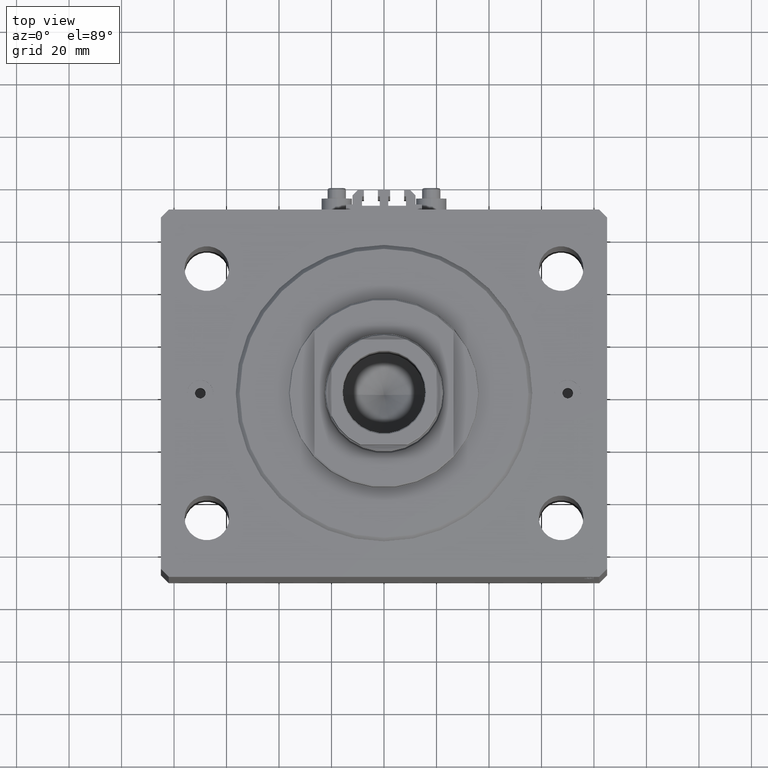
[diagram: clean part render]
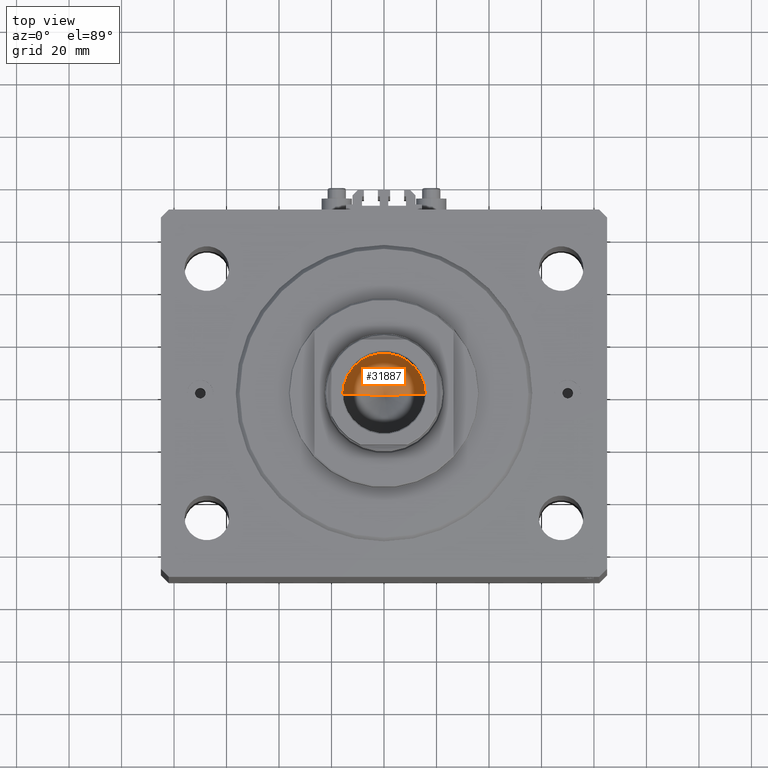
[diagram: same view with one face highlighted and labeled with its STEP entity id]
A machine part, top view. The second image highlights one B-rep face of the part: STEP entity #31887.
In plain terms, the highlighted conical surface has half-angle 59 deg.
Its self-contained STEP definition (entity closure, byte-faithful):
#1898 = CARTESIAN_POINT ( 'NONE',  ( 0.000000000000000000, 0.000000000000000000, 79.10000000000003695 ) ) ;
#2903 = LINE ( 'NONE', #36337, #39709 ) ;
#3424 = CARTESIAN_POINT ( 'NONE',  ( -15.74999999999998934, 1.928818708657080161E-15, 79.10000000000003695 ) ) ;
#3604 = FACE_OUTER_BOUND ( 'NONE', #8933, .T. ) ;
#4257 = DIRECTION ( 'NONE',  ( 0.8571673007021118895, 0.000000000000000000, 0.5150380749100549327 ) ) ;
#7285 = CARTESIAN_POINT ( 'NONE',  ( 15.74999999999998934, 0.000000000000000000, 79.10000000000003695 ) ) ;
#8933 = EDGE_LOOP ( 'NONE', ( #39392, #14261, #33417 ) ) ;
#8968 = CONICAL_SURFACE ( 'NONE', #47117, 15.74999999999998934, 1.029744258676653645 ) ;
#11470 = DIRECTION ( 'NONE',  ( 1.000000000000000000, 0.000000000000000000, 0.000000000000000000 ) ) ;
#11511 = CIRCLE ( 'NONE', #22195, 15.74999999999998934 ) ;
#14261 = ORIENTED_EDGE ( 'NONE', *, *, #36897, .T. ) ;
#14280 = LINE ( 'NONE', #28862, #22725 ) ;
#15056 = CARTESIAN_POINT ( 'NONE',  ( 0.000000000000000000, 0.000000000000000000, 79.10000000000003695 ) ) ;
#17982 = VERTEX_POINT ( 'NONE', #3424 ) ;
#22195 = AXIS2_PLACEMENT_3D ( 'NONE', #1898, #41539, #34119 ) ;
#22725 = VECTOR ( 'NONE', #25525, 1000.000000000000000 ) ;
#25525 = DIRECTION ( 'NONE',  ( -0.8571673007021118895, 1.049727191138618079E-16, 0.5150380749100549327 ) ) ;
#26527 = VERTEX_POINT ( 'NONE', #7285 ) ;
#28862 = CARTESIAN_POINT ( 'NONE',  ( -15.74999999999998934, 1.928818708657080161E-15, 79.10000000000003695 ) ) ;
#31887 = ADVANCED_FACE ( 'NONE', ( #3604 ), #8968, .F. ) ;
#33382 = EDGE_CURVE ( 'NONE', #38649, #17982, #14280, .T. ) ;
#33417 = ORIENTED_EDGE ( 'NONE', *, *, #39176, .T. ) ;
#34119 = DIRECTION ( 'NONE',  ( 1.000000000000000000, 0.000000000000000000, 0.000000000000000000 ) ) ;
#36337 = CARTESIAN_POINT ( 'NONE',  ( 15.74999999999998934, 0.000000000000000000, 79.10000000000003695 ) ) ;
#36897 = EDGE_CURVE ( 'NONE', #38649, #26527, #2903, .T. ) ;
#38649 = VERTEX_POINT ( 'NONE', #39988 ) ;
#39176 = EDGE_CURVE ( 'NONE', #26527, #17982, #11511, .T. ) ;
#39392 = ORIENTED_EDGE ( 'NONE', *, *, #33382, .F. ) ;
#39709 = VECTOR ( 'NONE', #4257, 1000.000000000000000 ) ;
#39988 = CARTESIAN_POINT ( 'NONE',  ( -1.480675244360640996E-14, 0.000000000000000000, 69.63644525031595833 ) ) ;
#40870 = DIRECTION ( 'NONE',  ( -0.000000000000000000, -0.000000000000000000, 1.000000000000000000 ) ) ;
#41539 = DIRECTION ( 'NONE',  ( -0.000000000000000000, -0.000000000000000000, 1.000000000000000000 ) ) ;
#47117 = AXIS2_PLACEMENT_3D ( 'NONE', #15056, #40870, #11470 ) ;